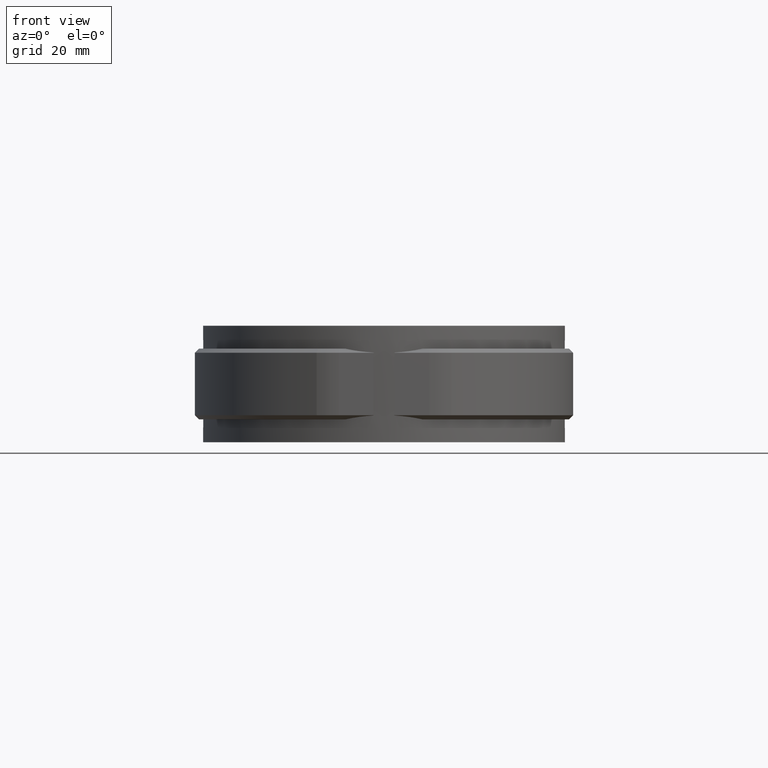
[diagram: clean part render]
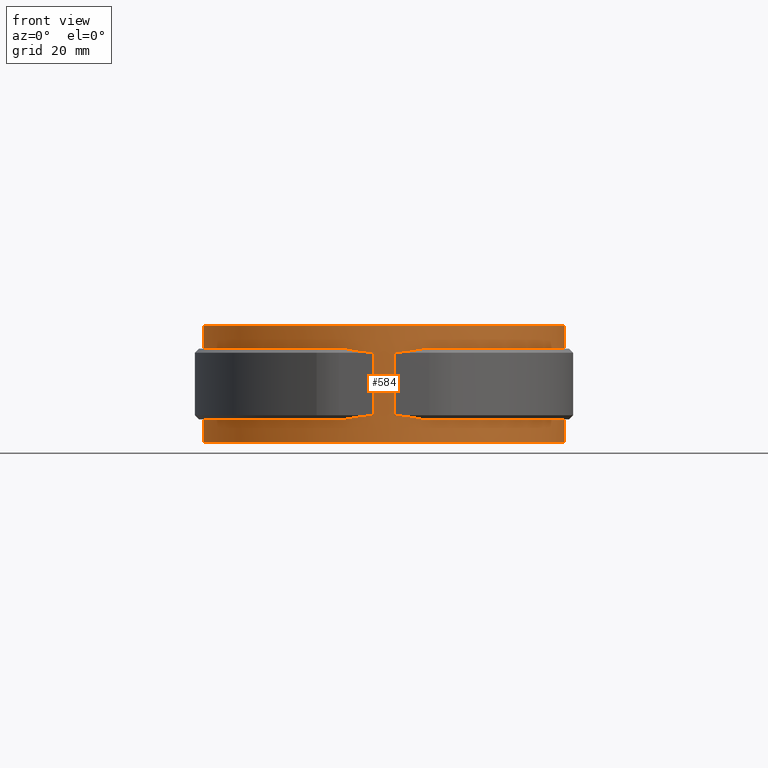
[diagram: same view with one face highlighted and labeled with its STEP entity id]
A machine part, front view. The second image highlights one B-rep face of the part: STEP entity #584.
In plain terms, the highlighted cylindrical surface (partial cylindrical patch) has radius 43.5 mm, axis along (0, 0, -1).
Its self-contained STEP definition (entity closure, byte-faithful):
#584 = ADVANCED_FACE( '', ( #1079 ), #1080, .T. );
#1079 = FACE_OUTER_BOUND( '', #2387, .T. );
#1080 = CYLINDRICAL_SURFACE( '', #2388, 43.5000000000000 );
#2387 = EDGE_LOOP( '', ( #5277, #5278, #5279, #5280, #5281, #5282, #5283, #5284, #5285, #5286, #5287, #5288, #5289, #5290, #5291, #5292 ) );
#2388 = AXIS2_PLACEMENT_3D( '', #5293, #5294, #5295 );
#5277 = ORIENTED_EDGE( '', *, *, #7622, .F. );
#5278 = ORIENTED_EDGE( '', *, *, #7583, .T. );
#5279 = ORIENTED_EDGE( '', *, *, #7623, .T. );
#5280 = ORIENTED_EDGE( '', *, *, #7567, .T. );
#5281 = ORIENTED_EDGE( '', *, *, #7624, .T. );
#5282 = ORIENTED_EDGE( '', *, *, #7625, .F. );
#5283 = ORIENTED_EDGE( '', *, *, #7619, .T. );
#5284 = ORIENTED_EDGE( '', *, *, #7609, .T. );
#5285 = ORIENTED_EDGE( '', *, *, #7626, .F. );
#5286 = ORIENTED_EDGE( '', *, *, #7627, .T. );
#5287 = ORIENTED_EDGE( '', *, *, #7628, .F. );
#5288 = ORIENTED_EDGE( '', *, *, #7629, .F. );
#5289 = ORIENTED_EDGE( '', *, *, #7600, .F. );
#5290 = ORIENTED_EDGE( '', *, *, #7573, .T. );
#5291 = ORIENTED_EDGE( '', *, *, #7630, .F. );
#5292 = ORIENTED_EDGE( '', *, *, #7588, .T. );
#5293 = CARTESIAN_POINT( '', ( 0.000000000000000, 0.000000000000000, -14.0000000000000 ) );
#5294 = DIRECTION( '', ( 0.000000000000000, 0.000000000000000, -1.00000000000000 ) );
#5295 = DIRECTION( '', ( -1.00000000000000, 6.07153216591882E-017, 0.000000000000000 ) );
#7567 = EDGE_CURVE( '', #8815, #8813, #8816, .T. );
#7573 = EDGE_CURVE( '', #8827, #8825, #8828, .T. );
#7583 = EDGE_CURVE( '', #8845, #8843, #8846, .T. );
#7588 = EDGE_CURVE( '', #8854, #8852, #8855, .F. );
#7600 = EDGE_CURVE( '', #8827, #8868, #8872, .T. );
#7609 = EDGE_CURVE( '', #8887, #8885, #8888, .T. );
#7619 = EDGE_CURVE( '', #8903, #8887, #8904, .T. );
#7622 = EDGE_CURVE( '', #8845, #8852, #8908, .F. );
#7623 = EDGE_CURVE( '', #8843, #8815, #8909, .T. );
#7624 = EDGE_CURVE( '', #8813, #8910, #8911, .T. );
#7625 = EDGE_CURVE( '', #8903, #8910, #8912, .T. );
#7626 = EDGE_CURVE( '', #8913, #8885, #8914, .T. );
#7627 = EDGE_CURVE( '', #8913, #8915, #8916, .F. );
#7628 = EDGE_CURVE( '', #8917, #8915, #8918, .T. );
#7629 = EDGE_CURVE( '', #8868, #8917, #8919, .T. );
#7630 = EDGE_CURVE( '', #8854, #8825, #8920, .T. );
#8813 = VERTEX_POINT( '', #12599 );
#8815 = VERTEX_POINT( '', #12602 );
#8816 = LINE( '', #12603, #12604 );
#8825 = VERTEX_POINT( '', #12621 );
#8827 = VERTEX_POINT( '', #12624 );
#8828 = LINE( '', #12625, #12626 );
#8843 = VERTEX_POINT( '', #12645 );
#8845 = VERTEX_POINT( '', #12648 );
#8846 = ELLIPSE( '', #12649, 61.5182899632297, 43.5000000000000 );
#8852 = VERTEX_POINT( '', #12658 );
#8854 = VERTEX_POINT( '', #12661 );
#8855 = ELLIPSE( '', #12662, 61.5182899632296, 43.5000000000000 );
#8868 = VERTEX_POINT( '', #12683 );
#8872 = CIRCLE( '', #12689, 43.5000000000000 );
#8885 = VERTEX_POINT( '', #12705 );
#8887 = VERTEX_POINT( '', #12708 );
#8888 = ELLIPSE( '', #12709, 61.5182899632297, 43.5000000000000 );
#8903 = VERTEX_POINT( '', #12730 );
#8904 = CIRCLE( '', #12731, 43.5000000000000 );
#8908 = LINE( '', #12736, #12737 );
#8909 = CIRCLE( '', #12738, 43.5000000000000 );
#8910 = VERTEX_POINT( '', #12739 );
#8911 = CIRCLE( '', #12740, 43.5000000000000 );
#8912 = LINE( '', #12741, #12742 );
#8913 = VERTEX_POINT( '', #12743 );
#8914 = LINE( '', #12744, #12745 );
#8915 = VERTEX_POINT( '', #12746 );
#8916 = ELLIPSE( '', #12747, 61.5182899632296, 43.5000000000000 );
#8917 = VERTEX_POINT( '', #12748 );
#8918 = CIRCLE( '', #12749, 43.5000000000000 );
#8919 = LINE( '', #12750, #12751 );
#8920 = CIRCLE( '', #12752, 43.5000000000000 );
#12599 = CARTESIAN_POINT( '', ( 6.00000000000000, 43.0842198490352, 14.0000000000000 ) );
#12602 = CARTESIAN_POINT( '', ( 6.00000000000000, 43.0842198490352, 8.50000000000000 ) );
#12603 = CARTESIAN_POINT( '', ( 6.00000000000000, 43.0842198490352, -14.0000000000000 ) );
#12604 = VECTOR( '', #14605, 1000.00000000000 );
#12621 = CARTESIAN_POINT( '', ( 6.00000000000000, 43.0842198490352, -8.50000000000000 ) );
#12624 = CARTESIAN_POINT( '', ( 6.00000000000000, 43.0842198490352, -14.0000000000000 ) );
#12625 = CARTESIAN_POINT( '', ( 6.00000000000000, 43.0842198490352, -14.0000000000000 ) );
#12626 = VECTOR( '', #14609, 1000.00000000000 );
#12645 = CARTESIAN_POINT( '', ( 9.27361849549578, -42.5000000000000, 8.50000000000000 ) );
#12648 = CARTESIAN_POINT( '', ( 2.50000000000001, -43.4281015012169, 7.57189849878306 ) );
#12649 = AXIS2_PLACEMENT_3D( '', #14627, #14628, #14629 );
#12658 = CARTESIAN_POINT( '', ( 2.50000000000001, -43.4281015012169, -7.57189849878307 ) );
#12661 = CARTESIAN_POINT( '', ( 9.27361849549578, -42.5000000000000, -8.50000000000000 ) );
#12662 = AXIS2_PLACEMENT_3D( '', #14634, #14635, #14636 );
#12683 = CARTESIAN_POINT( '', ( -5.99999999999996, 43.0842198490352, -14.0000000000000 ) );
#12689 = AXIS2_PLACEMENT_3D( '', #14650, #14651, #14652 );
#12705 = CARTESIAN_POINT( '', ( -2.50000000000001, -43.4281015012169, 7.57189849878306 ) );
#12708 = CARTESIAN_POINT( '', ( -9.27361849549578, -42.5000000000000, 8.50000000000000 ) );
#12709 = AXIS2_PLACEMENT_3D( '', #14669, #14670, #14671 );
#12730 = CARTESIAN_POINT( '', ( -5.99999999999996, 43.0842198490352, 8.50000000000000 ) );
#12731 = AXIS2_PLACEMENT_3D( '', #14687, #14688, #14689 );
#12736 = CARTESIAN_POINT( '', ( 2.50000000000001, -43.4281015012169, -14.0000000000000 ) );
#12737 = VECTOR( '', #14694, 1000.00000000000 );
#12738 = AXIS2_PLACEMENT_3D( '', #14695, #14696, #14697 );
#12739 = CARTESIAN_POINT( '', ( -5.99999999999996, 43.0842198490352, 14.0000000000000 ) );
#12740 = AXIS2_PLACEMENT_3D( '', #14698, #14699, #14700 );
#12741 = CARTESIAN_POINT( '', ( -5.99999999999996, 43.0842198490352, -14.0000000000000 ) );
#12742 = VECTOR( '', #14701, 1000.00000000000 );
#12743 = CARTESIAN_POINT( '', ( -2.50000000000001, -43.4281015012169, -7.57189849878307 ) );
#12744 = CARTESIAN_POINT( '', ( -2.50000000000001, -43.4281015012169, -14.0000000000000 ) );
#12745 = VECTOR( '', #14702, 1000.00000000000 );
#12746 = CARTESIAN_POINT( '', ( -9.27361849549578, -42.5000000000000, -8.50000000000000 ) );
#12747 = AXIS2_PLACEMENT_3D( '', #14703, #14704, #14705 );
#12748 = CARTESIAN_POINT( '', ( -6.00000000000000, 43.0842198490352, -8.50000000000000 ) );
#12749 = AXIS2_PLACEMENT_3D( '', #14706, #14707, #14708 );
#12750 = CARTESIAN_POINT( '', ( -5.99999999999996, 43.0842198490352, -14.0000000000000 ) );
#12751 = VECTOR( '', #14709, 1000.00000000000 );
#12752 = AXIS2_PLACEMENT_3D( '', #14710, #14711, #14712 );
#14605 = DIRECTION( '', ( 0.000000000000000, 0.000000000000000, 1.00000000000000 ) );
#14609 = DIRECTION( '', ( 0.000000000000000, 0.000000000000000, 1.00000000000000 ) );
#14627 = CARTESIAN_POINT( '', ( 0.000000000000000, 0.000000000000000, 51.0000000000000 ) );
#14628 = DIRECTION( '', ( 0.000000000000000, -0.707106781186548, 0.707106781186547 ) );
#14629 = DIRECTION( '', ( 0.000000000000000, 0.707106781186547, 0.707106781186548 ) );
#14634 = CARTESIAN_POINT( '', ( 0.000000000000000, 0.000000000000000, -51.0000000000000 ) );
#14635 = DIRECTION( '', ( 0.000000000000000, 0.707106781186548, 0.707106781186548 ) );
#14636 = DIRECTION( '', ( 0.000000000000000, -0.707106781186547, 0.707106781186547 ) );
#14650 = CARTESIAN_POINT( '', ( 0.000000000000000, 0.000000000000000, -14.0000000000000 ) );
#14651 = DIRECTION( '', ( 0.000000000000000, 0.000000000000000, -1.00000000000000 ) );
#14652 = DIRECTION( '', ( 1.00000000000000, -6.07153216591882E-017, 0.000000000000000 ) );
#14669 = CARTESIAN_POINT( '', ( 0.000000000000000, 0.000000000000000, 51.0000000000000 ) );
#14670 = DIRECTION( '', ( 0.000000000000000, -0.707106781186548, 0.707106781186547 ) );
#14671 = DIRECTION( '', ( 0.000000000000000, 0.707106781186547, 0.707106781186548 ) );
#14687 = CARTESIAN_POINT( '', ( 0.000000000000000, 0.000000000000000, 8.50000000000000 ) );
#14688 = DIRECTION( '', ( 0.000000000000000, 0.000000000000000, 1.00000000000000 ) );
#14689 = DIRECTION( '', ( 1.00000000000000, 0.000000000000000, 0.000000000000000 ) );
#14694 = DIRECTION( '', ( 0.000000000000000, 0.000000000000000, 1.00000000000000 ) );
#14695 = CARTESIAN_POINT( '', ( 0.000000000000000, 0.000000000000000, 8.50000000000000 ) );
#14696 = DIRECTION( '', ( 0.000000000000000, 0.000000000000000, 1.00000000000000 ) );
#14697 = DIRECTION( '', ( 1.00000000000000, 0.000000000000000, 0.000000000000000 ) );
#14698 = CARTESIAN_POINT( '', ( 0.000000000000000, 0.000000000000000, 14.0000000000000 ) );
#14699 = DIRECTION( '', ( 0.000000000000000, 0.000000000000000, -1.00000000000000 ) );
#14700 = DIRECTION( '', ( 1.00000000000000, -6.07153216591882E-017, 0.000000000000000 ) );
#14701 = DIRECTION( '', ( 0.000000000000000, 0.000000000000000, 1.00000000000000 ) );
#14702 = DIRECTION( '', ( 0.000000000000000, 0.000000000000000, 1.00000000000000 ) );
#14703 = CARTESIAN_POINT( '', ( 0.000000000000000, 0.000000000000000, -51.0000000000000 ) );
#14704 = DIRECTION( '', ( 0.000000000000000, 0.707106781186548, 0.707106781186548 ) );
#14705 = DIRECTION( '', ( 0.000000000000000, -0.707106781186547, 0.707106781186547 ) );
#14706 = CARTESIAN_POINT( '', ( 0.000000000000000, 0.000000000000000, -8.50000000000000 ) );
#14707 = DIRECTION( '', ( 0.000000000000000, 0.000000000000000, 1.00000000000000 ) );
#14708 = DIRECTION( '', ( 1.00000000000000, 0.000000000000000, 0.000000000000000 ) );
#14709 = DIRECTION( '', ( 0.000000000000000, 0.000000000000000, 1.00000000000000 ) );
#14710 = CARTESIAN_POINT( '', ( 0.000000000000000, 0.000000000000000, -8.50000000000000 ) );
#14711 = DIRECTION( '', ( 0.000000000000000, 0.000000000000000, 1.00000000000000 ) );
#14712 = DIRECTION( '', ( 1.00000000000000, 0.000000000000000, 0.000000000000000 ) );